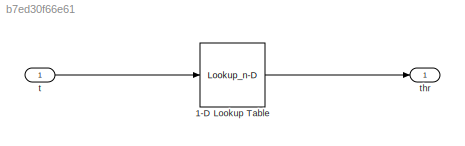
MODEL slx_b7ed30f66e61
KIND model
WORKSPACE source: external: MAT-File  (data not in archive)
BLOCK [Lookup_n-D] 1-D Lookup Table
  BreakpointsForDimension1 = thrx
  NumberOfTableDimensions = 1
  Ports = [1, 1]
  RndMeth = Simplest
  Table = thry
BLOCK [Inport] t
  IconDisplay = Port number
BLOCK [Outport] thr
  IconDisplay = Port number
LINE 1-D Lookup Table:1 -> thr:1
LINE t:1 -> 1-D Lookup Table:1
